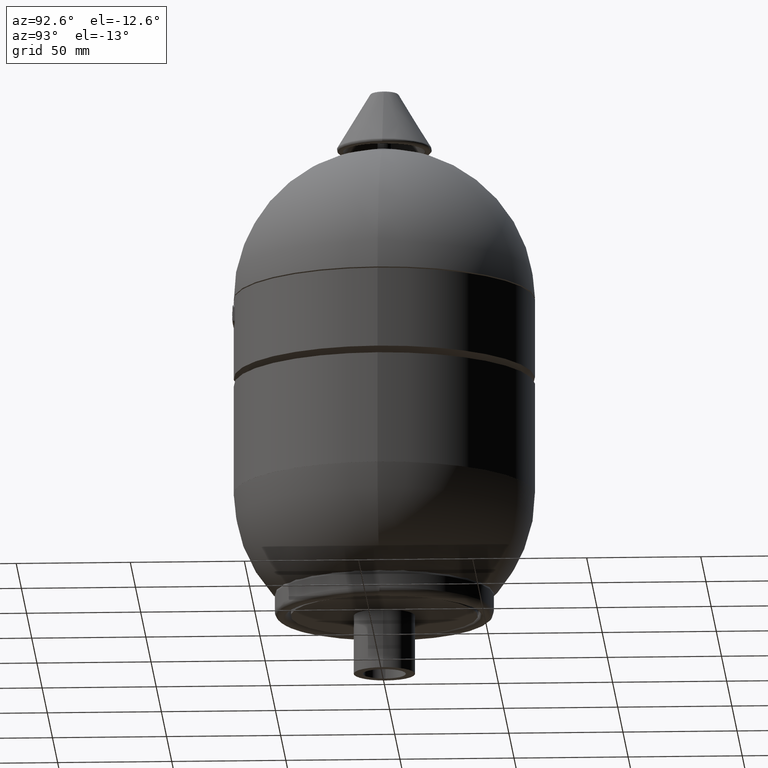
[diagram: clean part render]
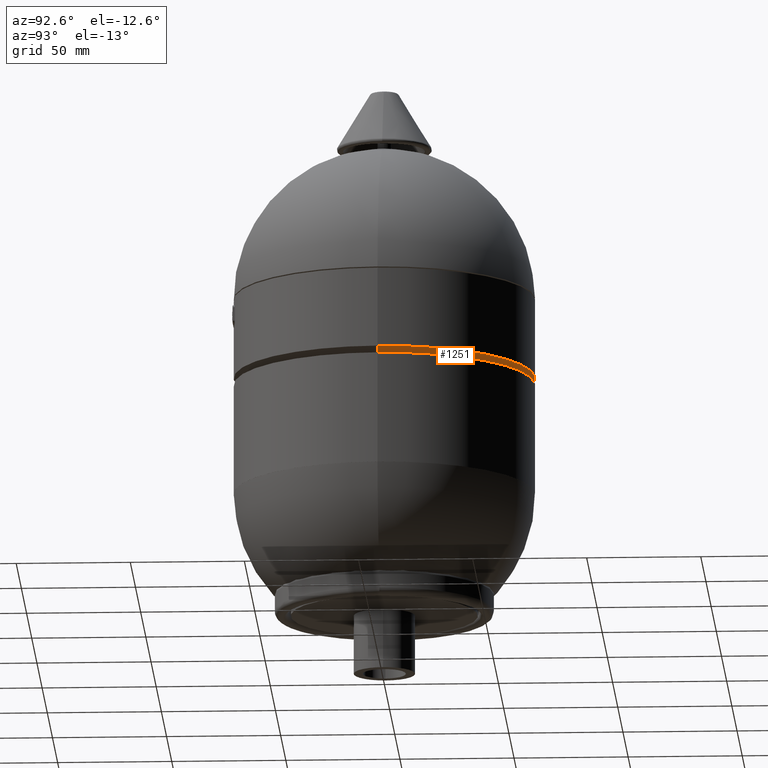
[diagram: same view with one face highlighted and labeled with its STEP entity id]
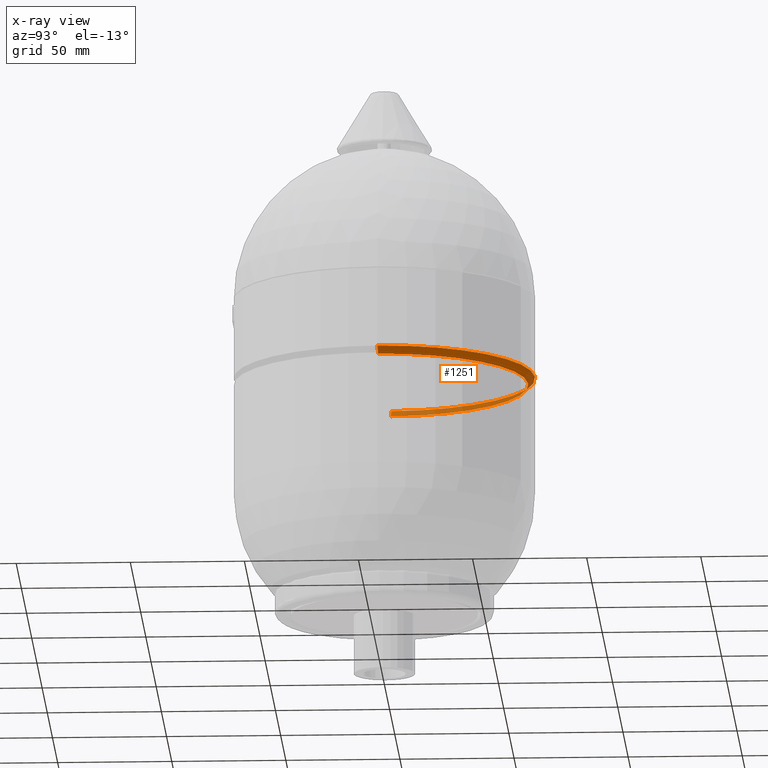
[diagram: x-ray of the same camera — body ghosted, the highlighted face saturated]
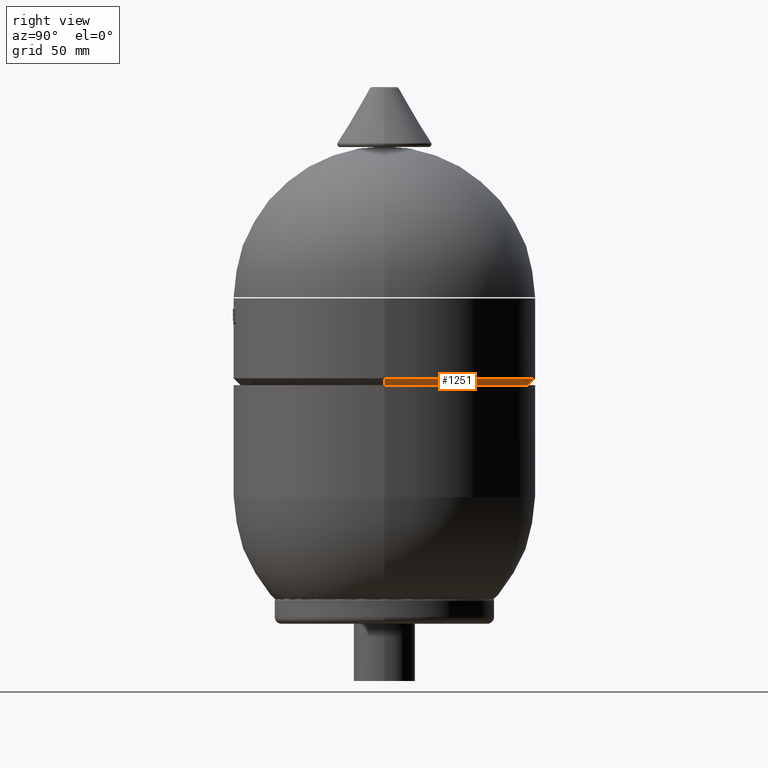
[diagram: same view with one face highlighted and labeled with its STEP entity id]
A machine part, auxiliary view. The second image highlights one B-rep face of the part: STEP entity #1251.
The next image is the same camera in x-ray: the body ghosted, the highlighted face saturated — about 31% of this face is hidden behind the body in this view.
A second angle (right view) of the same face is appended — the face is thin or edge-on in the first view.
In plain terms, the highlighted conical surface has half-angle 45 deg.
Its self-contained STEP definition (entity closure, byte-faithful):
#1071=CARTESIAN_POINT('',(65.999999999999972,0.0,132.500000000000000));
#1072=VERTEX_POINT('',#1071);
#1088=CARTESIAN_POINT('',(-65.999999999999957,-8.082402E-015,132.500000000000000));
#1089=VERTEX_POINT('',#1088);
#1111=CARTESIAN_POINT('',(62.999999999999986,0.0,129.499999999999970));
#1112=VERTEX_POINT('',#1111);
#1113=CARTESIAN_POINT('',(65.999999999999972,0.0,132.500000000000000));
#1114=DIRECTION('',(-0.707106781186542,0.0,-0.707106781186552));
#1115=VECTOR('',#1114,4.242640687119295);
#1116=LINE('',#1113,#1115);
#1117=EDGE_CURVE('',#1072,#1112,#1116,.T.);
#1120=CARTESIAN_POINT('',(-62.999999999999972,-7.715020E-015,129.499999999999970));
#1121=VERTEX_POINT('',#1120);
#1122=CARTESIAN_POINT('',(-65.999999999999957,-8.082402E-015,132.500000000000000));
#1123=DIRECTION('',(0.707106781186542,8.659275E-017,-0.707106781186552));
#1124=VECTOR('',#1123,4.242640687119295);
#1125=LINE('',#1122,#1124);
#1126=EDGE_CURVE('',#1089,#1121,#1125,.T.);
#1195=CARTESIAN_POINT('',(0.0,0.0,129.499999999999970));
#1196=DIRECTION('',(0.0,0.0,1.0));
#1197=DIRECTION('',(1.0,0.0,0.0));
#1198=AXIS2_PLACEMENT_3D('',#1195,#1196,#1197);
#1199=CIRCLE('',#1198,62.999999999999986);
#1200=EDGE_CURVE('',#1112,#1121,#1199,.T.);
#1234=CARTESIAN_POINT('',(0.0,0.0,131.0));
#1235=DIRECTION('',(0.0,0.0,1.0));
#1236=DIRECTION('',(1.0,0.0,0.0));
#1237=AXIS2_PLACEMENT_3D('',#1234,#1235,#1236);
#1238=CONICAL_SURFACE('',#1237,64.499999999999972,44.999999999999659);
#1239=ORIENTED_EDGE('',*,*,#1117,.T.);
#1240=ORIENTED_EDGE('',*,*,#1200,.T.);
#1241=ORIENTED_EDGE('',*,*,#1126,.F.);
#1242=CARTESIAN_POINT('',(0.0,0.0,132.500000000000000));
#1243=DIRECTION('',(0.0,0.0,1.0));
#1244=DIRECTION('',(1.0,0.0,0.0));
#1245=AXIS2_PLACEMENT_3D('',#1242,#1243,#1244);
#1246=CIRCLE('',#1245,65.999999999999972);
#1247=EDGE_CURVE('',#1072,#1089,#1246,.T.);
#1248=ORIENTED_EDGE('',*,*,#1247,.F.);
#1249=EDGE_LOOP('',(#1239,#1240,#1241,#1248));
#1250=FACE_OUTER_BOUND('',#1249,.T.);
#1251=ADVANCED_FACE('',(#1250),#1238,.T.);